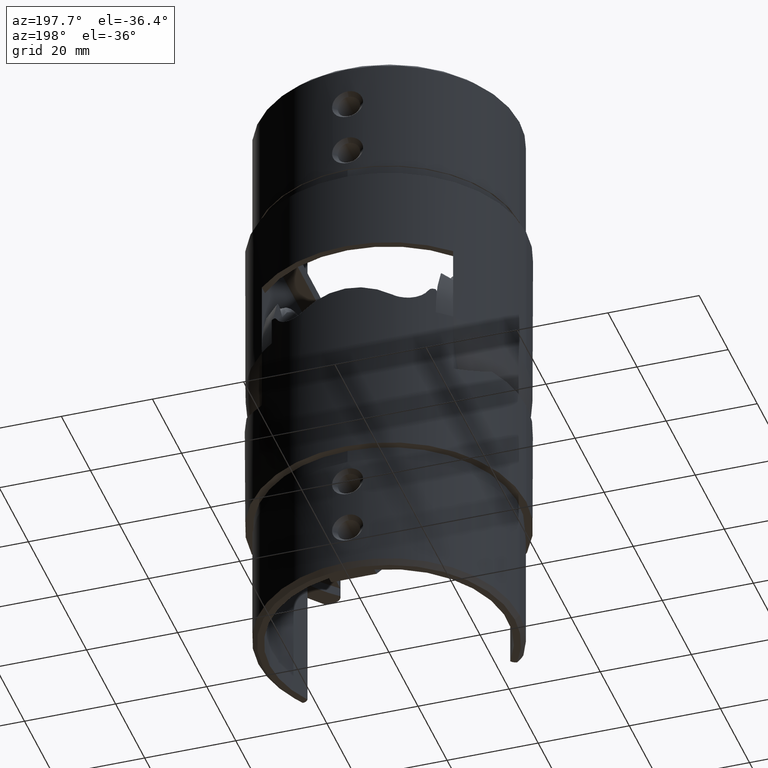
[diagram: clean part render]
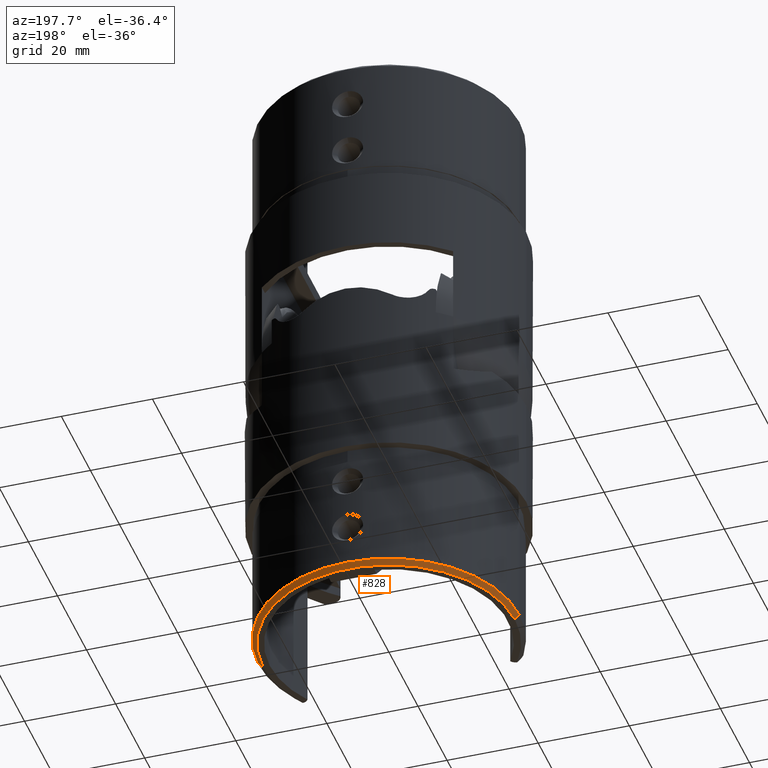
[diagram: same view with one face highlighted and labeled with its STEP entity id]
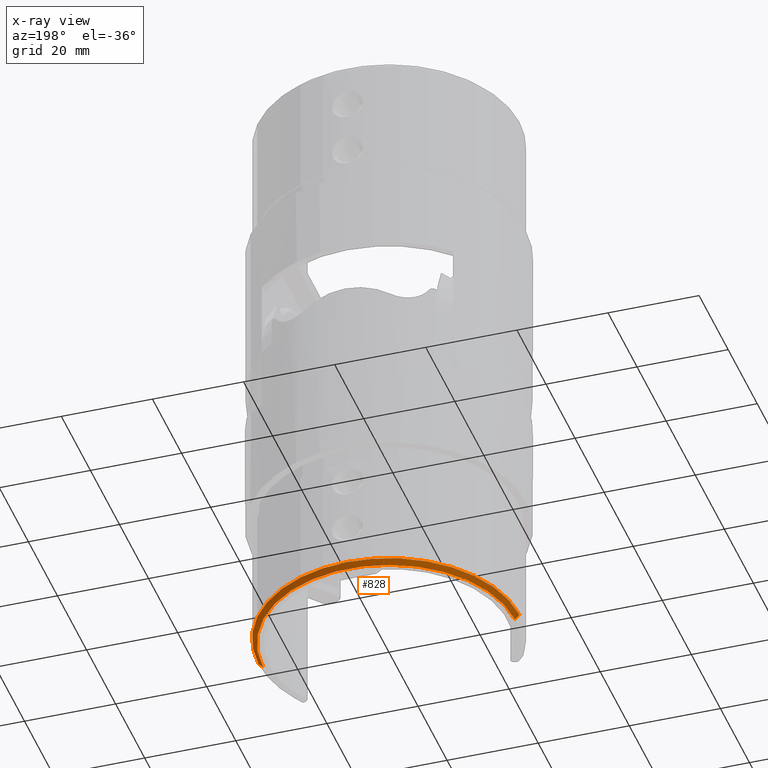
[diagram: x-ray of the same camera — body ghosted, the highlighted face saturated]
A machine part, auxiliary view. The second image highlights one B-rep face of the part: STEP entity #828.
The next image is the same camera in x-ray: the body ghosted, the highlighted face saturated — about 0% of this face is hidden behind the body in this view.
In plain terms, the highlighted conical surface has half-angle 45 deg.
Its self-contained STEP definition (entity closure, byte-faithful):
#828 = ADVANCED_FACE ( 'NONE', ( #26370 ), #2392, .T. ) ;
#2392 = CONICAL_SURFACE ( 'NONE', #19028, 27.64999999999998792, 0.7853981633974431720 ) ;
#2559 = LINE ( 'NONE', #21867, #27621 ) ;
#4235 = CARTESIAN_POINT ( 'NONE',  ( -27.64999999999998792, 0.000000000000000000, 32.00000000000000000 ) ) ;
#4252 = CARTESIAN_POINT ( 'NONE',  ( 28.64999999999999503, 3.508613079557166097E-15, 30.99999999999998224 ) ) ;
#5115 = CIRCLE ( 'NONE', #16334, 27.64999999999998792 ) ;
#5265 = CIRCLE ( 'NONE', #6789, 28.64999999999999503 ) ;
#5465 = VECTOR ( 'NONE', #27841, 1000.000000000000000 ) ;
#6789 = AXIS2_PLACEMENT_3D ( 'NONE', #19830, #24456, #26876 ) ;
#7967 = DIRECTION ( 'NONE',  ( -0.7071067811865439090, 0.000000000000000000, -0.7071067811865512365 ) ) ;
#8653 = ORIENTED_EDGE ( 'NONE', *, *, #15898, .T. ) ;
#9065 = DIRECTION ( 'NONE',  ( 1.000000000000000000, 0.000000000000000000, 0.000000000000000000 ) ) ;
#9624 = ORIENTED_EDGE ( 'NONE', *, *, #17003, .F. ) ;
#10636 = EDGE_CURVE ( 'NONE', #23472, #24819, #5265, .T. ) ;
#10920 = DIRECTION ( 'NONE',  ( 0.000000000000000000, 0.000000000000000000, -1.000000000000000000 ) ) ;
#13878 = LINE ( 'NONE', #20866, #5465 ) ;
#15898 = EDGE_CURVE ( 'NONE', #22295, #24819, #13878, .T. ) ;
#15997 = DIRECTION ( 'NONE',  ( 0.000000000000000000, 0.000000000000000000, 1.000000000000000000 ) ) ;
#16334 = AXIS2_PLACEMENT_3D ( 'NONE', #29681, #15997, #9065 ) ;
#17003 = EDGE_CURVE ( 'NONE', #27312, #23472, #2559, .T. ) ;
#19028 = AXIS2_PLACEMENT_3D ( 'NONE', #20085, #10920, #27137 ) ;
#19830 = CARTESIAN_POINT ( 'NONE',  ( 0.000000000000000000, 0.000000000000000000, 30.99999999999998224 ) ) ;
#20085 = CARTESIAN_POINT ( 'NONE',  ( 0.000000000000000000, 0.000000000000000000, 32.00000000000000000 ) ) ;
#20256 = ORIENTED_EDGE ( 'NONE', *, *, #21483, .F. ) ;
#20436 = CARTESIAN_POINT ( 'NONE',  ( 27.64999999999998792, 3.447380739599798128E-15, 32.00000000000000000 ) ) ;
#20866 = CARTESIAN_POINT ( 'NONE',  ( 27.64999999999998792, 3.386148399642430160E-15, 32.00000000000000000 ) ) ;
#21483 = EDGE_CURVE ( 'NONE', #22295, #27312, #5115, .T. ) ;
#21867 = CARTESIAN_POINT ( 'NONE',  ( -27.64999999999998792, 0.000000000000000000, 32.00000000000000000 ) ) ;
#22295 = VERTEX_POINT ( 'NONE', #20436 ) ;
#23472 = VERTEX_POINT ( 'NONE', #25458 ) ;
#24456 = DIRECTION ( 'NONE',  ( 0.000000000000000000, 0.000000000000000000, -1.000000000000000000 ) ) ;
#24819 = VERTEX_POINT ( 'NONE', #4252 ) ;
#25458 = CARTESIAN_POINT ( 'NONE',  ( -28.64999999999999503, 0.000000000000000000, 30.99999999999998224 ) ) ;
#25962 = EDGE_LOOP ( 'NONE', ( #20256, #8653, #27689, #9624 ) ) ;
#26370 = FACE_OUTER_BOUND ( 'NONE', #25962, .T. ) ;
#26876 = DIRECTION ( 'NONE',  ( 1.000000000000000000, 0.000000000000000000, 0.000000000000000000 ) ) ;
#27137 = DIRECTION ( 'NONE',  ( -1.000000000000000000, 0.000000000000000000, 0.000000000000000000 ) ) ;
#27312 = VERTEX_POINT ( 'NONE', #4235 ) ;
#27621 = VECTOR ( 'NONE', #7967, 1000.000000000000000 ) ;
#27689 = ORIENTED_EDGE ( 'NONE', *, *, #10636, .F. ) ;
#27841 = DIRECTION ( 'NONE',  ( 0.7071067811865439090, 8.659560562354888485E-17, -0.7071067811865512365 ) ) ;
#29681 = CARTESIAN_POINT ( 'NONE',  ( 0.000000000000000000, 0.000000000000000000, 32.00000000000000000 ) ) ;